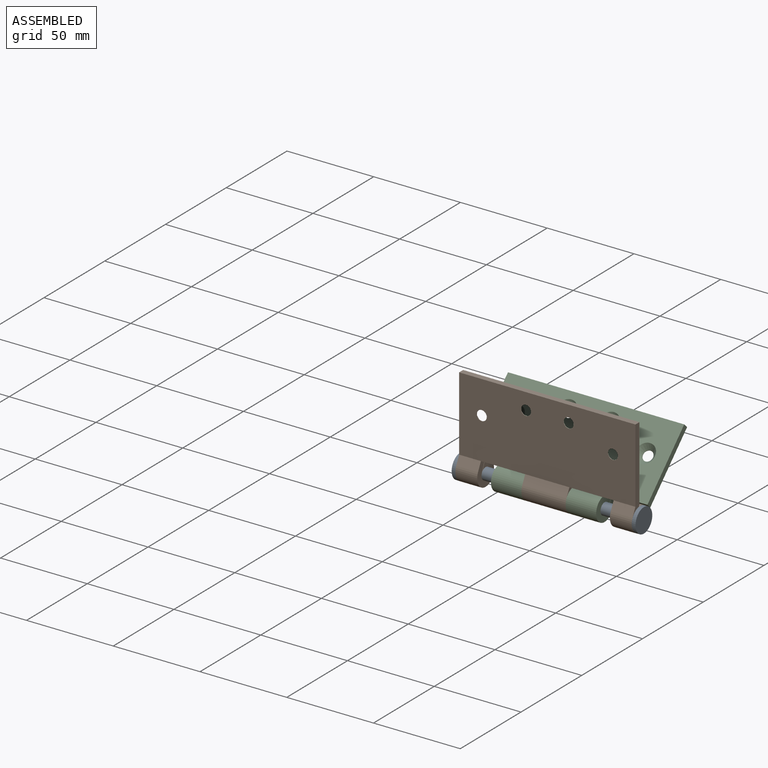
[diagram: assembled view]
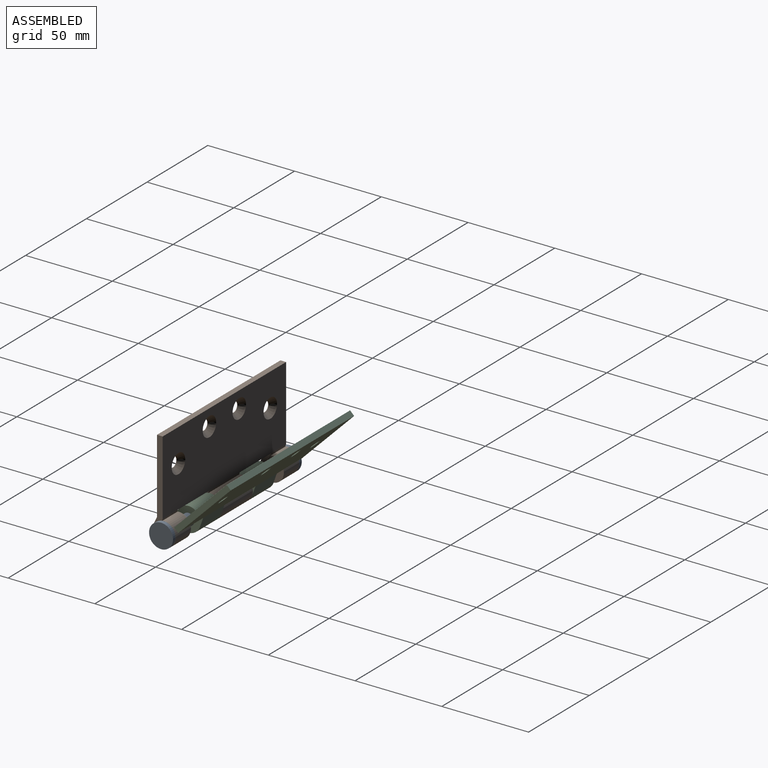
[diagram: assembled view, second angle]
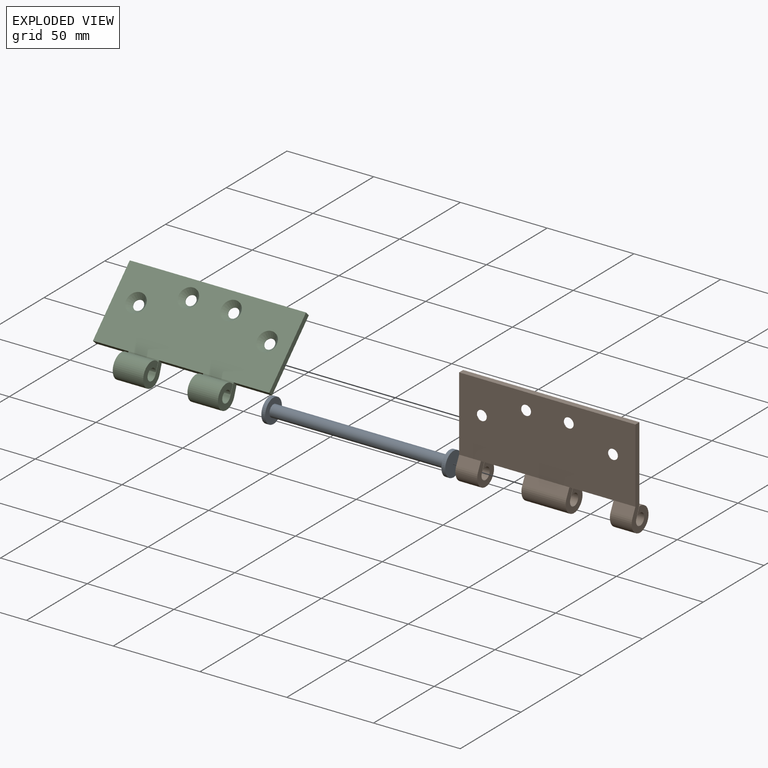
[diagram: exploded view]
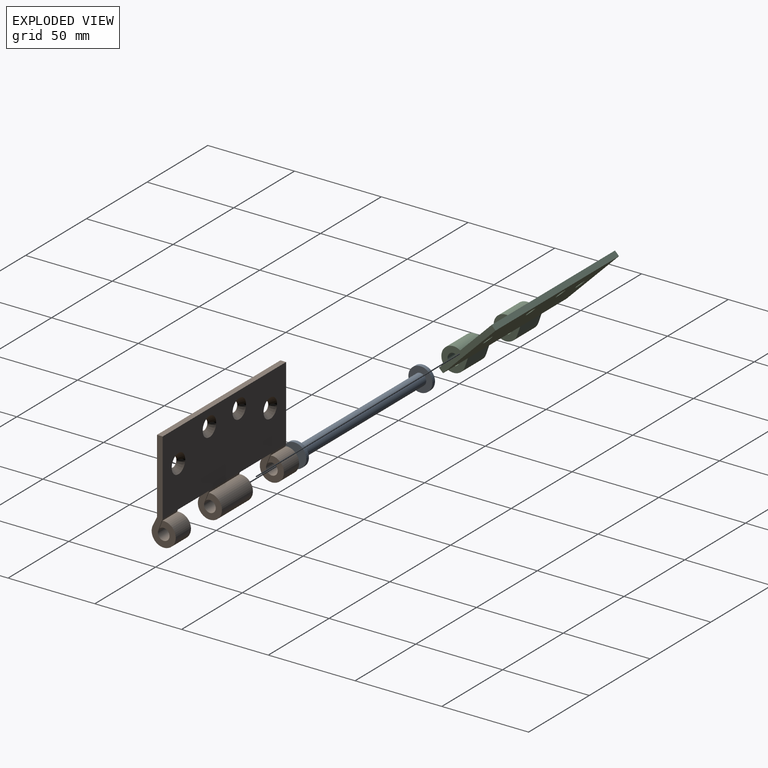
[diagram: exploded view, second angle]
ASSEMBLY  parts=3 mates=2
PART A: 7 faces, bbox 106x13.8x13.8 mm
  f0: cylinder r=3.37mm len=101.6mm, axis (1,0,0), area 2153.5mm2, adj f3,f6
  f1: cylinder r=6.91mm len=13.82mm, axis (1,0,0), area 94.8mm2, adj f2,f3
  f2: plane 13.82x13.82mm, normal (-1,0,0), area 150mm2, adj f1
  f3: plane 13.82x13.82mm, normal (1,0,0), area 114.2mm2, adj f0,f1
  f4: cylinder r=6.91mm len=13.82mm, axis (1,0,0), area 94.8mm2, adj f5,f6
  f5: plane 13.82x13.82mm, normal (1,0,0), area 150mm2, adj f4
  f6: plane 13.82x13.82mm, normal (-1,0,0), area 114.2mm2, adj f0,f4
PART B: 34 faces, bbox 101.6x13.9x57.7 mm
  f0: plane 12.55x4.6mm, normal (0,-0.93,0.36), area 61.7mm2, adj f1,f10,f19,f23
  f1: cylinder r=3.37mm len=12.55mm, axis (-1,0,0), area 249.4mm2, adj f0,f2,f19,f23
  f2: plane 12.55x6.74mm, normal (0,0.93,-0.36), area 90.5mm2, adj f1,f14,f19,f23
  f3: plane 12.55x4.9mm, normal (0,-0.9,0.44), area 68.3mm2, adj f10,f16,f19,f23
  f4: cylinder r=6.95mm len=25.5mm, axis (-1,0,0), area 932.9mm2, adj f6,f9,f21,f24
  f5: cylinder r=6.95mm len=13.89mm, axis (-1,0,0), area 459mm2, adj f11,f17,f18,f22
  f6: plane 25.5x4.6mm, normal (0,-0.93,0.36), area 125.5mm2, adj f4,f7,f21,f24
  f7: cylinder r=3.37mm len=25.5mm, axis (-1,0,0), area 506.9mm2, adj f6,f8,f21,f24
  f8: plane 25.5x6.74mm, normal (0,0.93,-0.36), area 183.8mm2, adj f7,f14,f21,f24
  f9: plane 25.5x4.9mm, normal (0,-0.9,0.44), area 138.9mm2, adj f4,f16,f21,f24
  f10: cylinder r=6.95mm len=13.89mm, axis (-1,0,0), area 459mm2, adj f0,f3,f19,f23
  f11: plane 12.55x4.6mm, normal (0,-0.93,0.36), area 61.7mm2, adj f5,f12,f18,f22
  f12: cylinder r=3.37mm len=12.55mm, axis (-1,0,0), area 249.4mm2, adj f11,f13,f18,f22
  f13: plane 12.55x6.74mm, normal (0,0.93,-0.36), area 90.5mm2, adj f12,f14,f18,f22
  f14: plane 101.6x42.86mm, normal (0,1,0), area 3966mm2, adj f2,f8,f13,f15,f18,f19,f20,f25
  f15: plane 101.6x3.28mm, normal (0,0,1), area 332.9mm2, adj f14,f16,f18,f19
  f16: plane 101.6x42.86mm, normal (0,-1,0), area 4249.5mm2, adj f3,f9,f15,f17,f18,f19,f20,f25
  f17: plane 12.55x4.9mm, normal (0,-0.9,0.44), area 68.3mm2, adj f5,f16,f18,f22
  f18: plane 57.75x13.89mm, normal (1,0,0), area 261.4mm2, adj f5,f11,f12,f13,f14,f15,f16,f17
  f19: plane 57.75x13.89mm, normal (-1,0,0), area 261.4mm2, adj f0,f1,f2,f3,f10,f14,f15,f16
  f20: plane 25.5x3.28mm, normal (0,0,-1), area 83.6mm2, adj f14,f16,f21,f22
  f21: plane 14.88x13.89mm, normal (1,0,0), area 120.9mm2, adj f4,f6,f7,f8,f9,f20
  f22: plane 14.88x13.89mm, normal (-1,0,0), area 120.9mm2, adj f5,f11,f12,f13,f17,f20
  f23: plane 14.88x13.89mm, normal (1,0,0), area 120.9mm2, adj f0,f1,f2,f3,f10,f25
  f24: plane 14.88x13.89mm, normal (-1,0,0), area 120.9mm2, adj f4,f6,f7,f8,f9,f25
  f25: plane 25.5x3.28mm, normal (0,0,-1), area 83.6mm2, adj f14,f16,f23,f24
  f26: cylinder r=2.9mm len=5.79mm, axis (0,1,0), area 3.8mm2, adj f16,f27
  f27: cone r=5.56mm half-angle=41deg, axis (0,1,0), area 108mm2, adj f14,f26
  f28: cylinder r=2.9mm len=5.79mm, axis (0,1,0), area 3.8mm2, adj f16,f29
  f29: cone r=5.56mm half-angle=41deg, axis (0,1,0), area 108mm2, adj f14,f28
  f30: cylinder r=2.9mm len=5.79mm, axis (0,1,0), area 3.8mm2, adj f16,f31
  f31: cone r=5.56mm half-angle=41deg, axis (0,1,0), area 108mm2, adj f14,f30
  f32: cylinder r=2.9mm len=5.79mm, axis (0,1,0), area 3.8mm2, adj f16,f33
  f33: cone r=5.56mm half-angle=41deg, axis (0,1,0), area 108mm2, adj f14,f32
PART C: 30 faces, bbox 101.6x37.2x49.6 mm
  f0: plane 14.44x13.89mm, normal (1,0,0), area 120.9mm2, adj f3,f4,f5,f6,f7,f11
  f1: plane 101.6x2.77mm, normal (0,0.53,0.85), area 332.9mm2, adj f2,f8,f9,f18
  f2: plane 101.6x36.29mm, normal (0,-0.85,0.53), area 3966mm2, adj f1,f3,f9,f10,f11,f13,f18,f19
  f3: plane 17.56x7.07mm, normal (0,-0.98,0.2), area 126.6mm2, adj f0,f2,f4,f21
  f4: cylinder r=3.37mm len=17.56mm, axis (-1,0,0), area 349.1mm2, adj f0,f3,f5,f21
  f5: plane 17.56x4.83mm, normal (0,0.98,-0.2), area 86.4mm2, adj f0,f4,f6,f21
  f6: cylinder r=6.95mm len=17.56mm, axis (-1,0,0), area 642.5mm2, adj f0,f5,f7,f21
  f7: plane 17.56x5.42mm, normal (0,0.99,-0.11), area 95.7mm2, adj f0,f6,f8,f21
  f8: plane 101.6x36.29mm, normal (0,0.85,-0.53), area 4249.5mm2, adj f1,f7,f9,f10,f11,f17,f18,f19
  f9: plane 38.03x25.58mm, normal (-1,0,0), area 140.4mm2, adj f1,f2,f8,f10
  f10: plane 20.49x2.77mm, normal (0,-0.53,-0.85), area 67.1mm2, adj f2,f8,f9,f21
  f11: plane 25.5x2.77mm, normal (0,-0.53,-0.85), area 83.6mm2, adj f0,f2,f8,f12
  f12: plane 14.44x13.89mm, normal (-1,0,0), area 120.9mm2, adj f11,f13,f14,f15,f16,f17
  f13: plane 17.56x7.07mm, normal (0,-0.98,0.2), area 126.6mm2, adj f2,f12,f14,f20
  f14: cylinder r=3.37mm len=17.56mm, axis (1,0,0), area 349.1mm2, adj f12,f13,f15,f20
  f15: plane 17.56x4.83mm, normal (0,0.98,-0.2), area 86.4mm2, adj f12,f14,f16,f20
  f16: cylinder r=6.95mm len=17.56mm, axis (1,0,0), area 642.5mm2, adj f12,f15,f17,f20
  f17: plane 17.56x5.42mm, normal (0,0.99,-0.11), area 95.7mm2, adj f8,f12,f16,f20
  f18: plane 38.03x25.58mm, normal (1,0,0), area 140.4mm2, adj f1,f2,f8,f19
  f19: plane 20.49x2.77mm, normal (0,-0.53,-0.85), area 67.1mm2, adj f2,f8,f18,f20
  f20: plane 14.44x13.89mm, normal (1,0,0), area 120.9mm2, adj f13,f14,f15,f16,f17,f19
  f21: plane 14.44x13.89mm, normal (-1,0,0), area 120.9mm2, adj f3,f4,f5,f6,f7,f10
  f22: cone r=5.56mm half-angle=41deg, axis (0,-0.85,0.53), area 108mm2, adj f2,f23
  f23: cylinder r=2.9mm len=5.79mm, axis (0,-0.85,0.53), area 3.8mm2, adj f8,f22
  f24: cone r=5.56mm half-angle=41deg, axis (0,-0.85,0.53), area 108mm2, adj f2,f25
  f25: cylinder r=2.9mm len=5.79mm, axis (0,-0.85,0.53), area 3.8mm2, adj f8,f24
  f26: cone r=5.56mm half-angle=41deg, axis (0,-0.85,0.53), area 108mm2, adj f2,f27
  f27: cylinder r=2.9mm len=5.79mm, axis (0,-0.85,0.53), area 3.8mm2, adj f8,f26
  f28: cone r=5.56mm half-angle=41deg, axis (0,-0.85,0.53), area 108mm2, adj f2,f29
  f29: cylinder r=2.9mm len=5.79mm, axis (0,-0.85,0.53), area 3.8mm2, adj f8,f28
PLACE A t=(-24.61,-15.84,-9.35)mm
PLACE B t=(-24.61,-15.84,-9.35)mm
PLACE C rot(axis=(-1,0,0),12.9deg) t=(-24.61,-35.7,6.16)mm
MATE revolute B.f1 <-> A.f0  axis (-1,0,0) through (-68.15,43.11,86.55)mm
MATE revolute C.f14 <-> B.f1  axis (1,0,0) through (-30.1,43.11,86.55)mm
